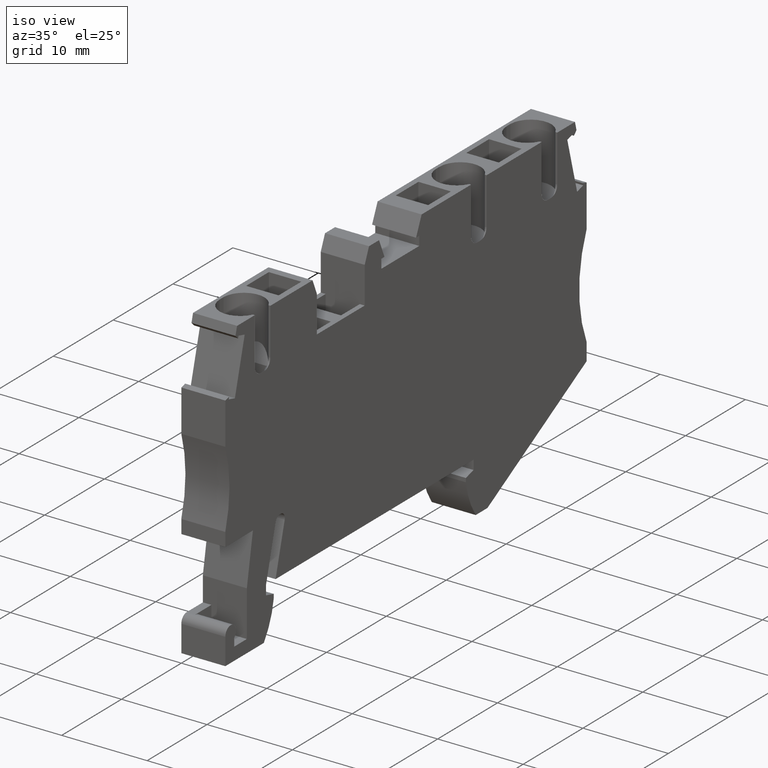
[diagram: clean part render]
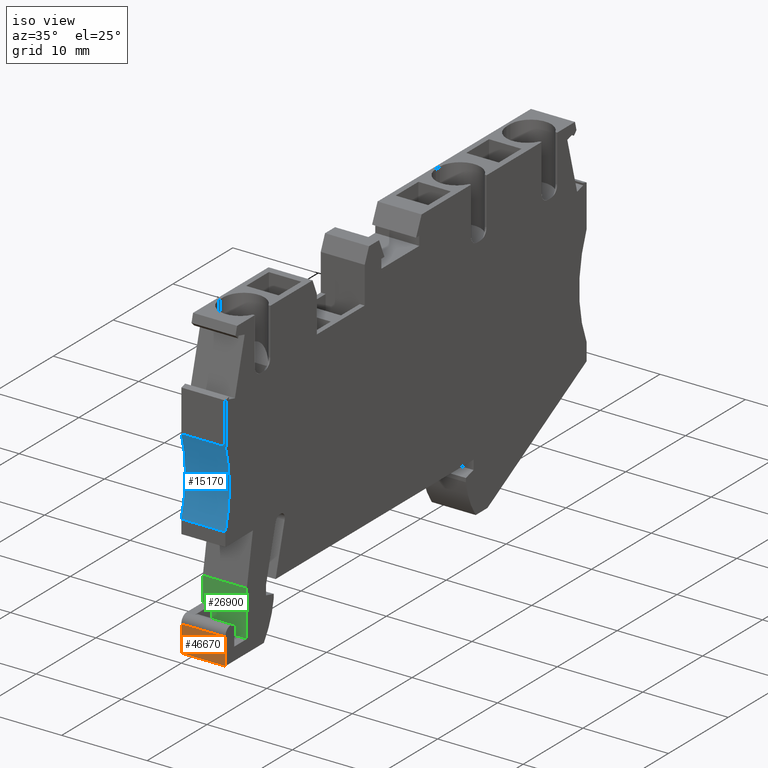
[diagram: same view with three faces highlighted in distinct colors, each labeled with its STEP entity id]
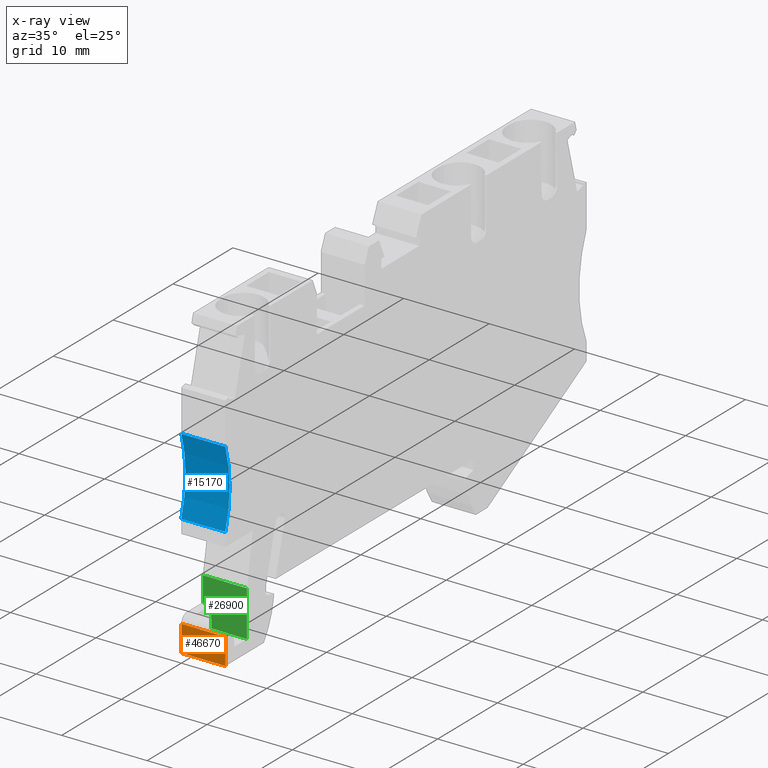
[diagram: x-ray of the same camera — body ghosted, the three highlighted faces saturated]
A machine part, iso view with three faces highlighted in distinct colors.
The next image is the same camera in x-ray (body ghosted, the three faces saturated) — at least one of them is partly hidden behind the body in this view.
Their STEP definitions:

[orange] entity #46670 — the highlighted planar face has unit normal (-0, -1, 0).
#18980=CARTESIAN_POINT('',(-22.3678327783247,-44.4000000000017,53.67));
#18990=VERTEX_POINT('',#18980);
#19020=CARTESIAN_POINT('',(-22.3678327783247,-39.6931569607141,53.67));
#19030=DIRECTION('',(0.,1.,0.));
#19040=VECTOR('',#19030,1.);
#19050=LINE('',#19020,#19040);
#19060=CARTESIAN_POINT('',(-22.3678327783247,-41.3000000000025,53.67));
#19070=VERTEX_POINT('',#19060);
#19080=EDGE_CURVE('',#18990,#19070,#19050,.T.);
#27580=CARTESIAN_POINT('',(-22.3678327783247,-41.3000000000018,48.52));
#27590=VERTEX_POINT('',#27580);
#27620=CARTESIAN_POINT('',(-22.3678327783247,-39.6931569607141,48.52));
#27630=DIRECTION('',(0.,1.,0.));
#27640=VECTOR('',#27630,1.);
#27650=LINE('',#27620,#27640);
#27660=CARTESIAN_POINT('',(-22.3678327783247,-44.4000000000017,48.52));
#27670=VERTEX_POINT('',#27660);
#27680=EDGE_CURVE('',#27670,#27590,#27650,.T.);
#45080=CARTESIAN_POINT('',(-22.3678327783247,-44.4000000000017,53.67));
#45090=DIRECTION('',(0.,0.,-1.));
#45100=VECTOR('',#45090,1.);
#45110=LINE('',#45080,#45100);
#45120=EDGE_CURVE('',#18990,#27670,#45110,.T.);
#46510=CARTESIAN_POINT('',(-22.3678327783247,-43.4000000000018,48.52));
#46520=DIRECTION('',(-1.,0.,0.));
#46530=DIRECTION('',(0.,-1.,0.));
#46540=AXIS2_PLACEMENT_3D('',#46510,#46520,#46530);
#46550=PLANE('',#46540);
#46560=ORIENTED_EDGE('',*,*,#19080,.T.);
#46570=ORIENTED_EDGE('',*,*,#45120,.F.);
#46580=ORIENTED_EDGE('',*,*,#27680,.F.);
#46590=CARTESIAN_POINT('',(-22.3678327783247,-41.3000000000025,53.67));
#46600=DIRECTION('',(5.04870979341448E-29,-6.60126663068576E-13,1.));
#46610=VECTOR('',#46600,1.);
#46620=LINE('',#46590,#46610);
#46630=EDGE_CURVE('',#27590,#19070,#46620,.T.);
#46640=ORIENTED_EDGE('',*,*,#46630,.F.);
#46650=EDGE_LOOP('',(#46640,#46580,#46570,#46560));
#46660=FACE_OUTER_BOUND('',#46650,.T.);
#46670=ADVANCED_FACE('',(#46660),#46550,.T.);

[blue] entity #15170 — the highlighted cylindrical surface (partial cylindrical patch) has radius 15 mm, axis along (1, -0, 0).
#12230=CARTESIAN_POINT('',(-22.3678327783245,-30.2000000000027,48.52));
#12240=VERTEX_POINT('',#12230);
#12270=CARTESIAN_POINT('',(-22.3678327783245,-30.2000000000027,53.67));
#12280=DIRECTION('',(0.,0.,1.));
#12290=VECTOR('',#12280,1.);
#12300=LINE('',#12270,#12290);
#12310=CARTESIAN_POINT('',(-22.3678327783245,-30.2000000000027,53.67));
#12320=VERTEX_POINT('',#12310);
#12330=EDGE_CURVE('',#12240,#12320,#12300,.T.);
#13000=CARTESIAN_POINT('',(-22.3678327783245,-21.2000000000028,53.67));
#13010=VERTEX_POINT('',#13000);
#13040=CARTESIAN_POINT('',(-22.3678327783245,-21.2000000000028,53.67));
#13050=DIRECTION('',(0.,0.,1.));
#13060=VECTOR('',#13050,1.);
#13070=LINE('',#13040,#13060);
#13080=CARTESIAN_POINT('',(-22.3678327783245,-21.2000000000028,48.52));
#13090=VERTEX_POINT('',#13080);
#13100=EDGE_CURVE('',#13090,#13010,#13070,.T.);
#14940=CARTESIAN_POINT('',(-36.6769207995787,-25.7000000000028,53.67));
#14950=DIRECTION('',(0.,0.,1.));
#14960=DIRECTION('',(1.,0.,0.));
#14970=AXIS2_PLACEMENT_3D('',#14940,#14950,#14960);
#14980=CYLINDRICAL_SURFACE('',#14970,15.);
#14990=ORIENTED_EDGE('',*,*,#13100,.F.);
#15000=CARTESIAN_POINT('',(-36.6769207995787,-25.7000000000028,53.67));
#15010=DIRECTION('',(0.,0.,1.));
#15020=DIRECTION('',(1.,0.,0.));
#15030=AXIS2_PLACEMENT_3D('',#15000,#15010,#15020);
#15040=CIRCLE('',#15030,15.);
#15050=EDGE_CURVE('',#12320,#13010,#15040,.T.);
#15060=ORIENTED_EDGE('',*,*,#15050,.T.);
#15070=ORIENTED_EDGE('',*,*,#12330,.T.);
#15080=CARTESIAN_POINT('',(-36.6769207995787,-25.7000000000028,48.52));
#15090=DIRECTION('',(0.,0.,1.));
#15100=DIRECTION('',(1.,0.,0.));
#15110=AXIS2_PLACEMENT_3D('',#15080,#15090,#15100);
#15120=CIRCLE('',#15110,15.);
#15130=EDGE_CURVE('',#12240,#13090,#15120,.T.);
#15140=ORIENTED_EDGE('',*,*,#15130,.F.);
#15150=EDGE_LOOP('',(#15140,#15070,#15060,#14990));
#15160=FACE_OUTER_BOUND('',#15150,.T.);
#15170=ADVANCED_FACE('',(#15160),#14980,.F.);

[green] entity #26900 — the highlighted planar face has unit normal (-0, -1, 0).
#19310=CARTESIAN_POINT('',(-18.7678327783266,-42.9000000000017,53.67));
#19320=VERTEX_POINT('',#19310);
#19350=CARTESIAN_POINT('',(-18.7678327783247,-40.1351813799645,53.67));
#19360=DIRECTION('',(0.,1.,0.));
#19370=VECTOR('',#19360,1.);
#19380=LINE('',#19350,#19370);
#19390=CARTESIAN_POINT('',(-18.7678327783247,-37.5384100015805,53.67));
#19400=VERTEX_POINT('',#19390);
#19410=EDGE_CURVE('',#19320,#19400,#19380,.T.);
#25110=CARTESIAN_POINT('',(-18.7678327783247,-40.4000000000018,53.67));
#25120=DIRECTION('',(0.,0.,-1.));
#25130=VECTOR('',#25120,1.);
#25140=LINE('',#25110,#25130);
#25150=CARTESIAN_POINT('',(-18.7678327783247,-40.4000000000018,
49.519999999983));
#25160=VERTEX_POINT('',#25150);
#25170=CARTESIAN_POINT('',(-18.7678327783247,-40.4000000000018,48.52));
#25180=VERTEX_POINT('',#25170);
#25190=EDGE_CURVE('',#25160,#25180,#25140,.T.);
#26530=CARTESIAN_POINT('',(-18.7678327783247,-39.4000000000018,48.52));
#26540=DIRECTION('',(-1.,0.,0.));
#26550=DIRECTION('',(0.,-1.,0.));
#26560=AXIS2_PLACEMENT_3D('',#26530,#26540,#26550);
#26570=PLANE('',#26560);
#26580=CARTESIAN_POINT('',(-18.7678327783247,-40.1351813799645,48.52));
#26590=DIRECTION('',(0.,1.,0.));
#26600=VECTOR('',#26590,1.);
#26610=LINE('',#26580,#26600);
#26620=CARTESIAN_POINT('',(-18.7678327783247,-37.5384100015805,48.52));
#26630=VERTEX_POINT('',#26620);
#26640=EDGE_CURVE('',#25180,#26630,#26610,.T.);
#26650=ORIENTED_EDGE('',*,*,#26640,.F.);
#26660=CARTESIAN_POINT('',(-18.7678327783247,-37.5384100015805,53.67));
#26670=DIRECTION('',(0.,0.,1.));
#26680=VECTOR('',#26670,1.);
#26690=LINE('',#26660,#26680);
#26700=EDGE_CURVE('',#26630,#19400,#26690,.T.);
#26710=ORIENTED_EDGE('',*,*,#26700,.F.);
#26720=ORIENTED_EDGE('',*,*,#19410,.T.);
#26730=CARTESIAN_POINT('',(-18.7678327783231,-42.9000000000017,
49.519999999983));
#26740=DIRECTION('',(-8.43054428632944E-13,-1.46035561482392E-15,1.));
#26750=VECTOR('',#26740,1.);
#26760=LINE('',#26730,#26750);
#26770=CARTESIAN_POINT('',(-18.7678327783231,-42.9000000000017,
49.519999999983));
#26780=VERTEX_POINT('',#26770);
#26790=EDGE_CURVE('',#26780,#19320,#26760,.T.);
#26800=ORIENTED_EDGE('',*,*,#26790,.T.);
#26810=CARTESIAN_POINT('',(-18.7678327783231,-40.1351813799645,
49.519999999983));
#26820=DIRECTION('',(4.16333634234434E-17,-1.,-1.46035561482402E-15));
#26830=VECTOR('',#26820,1.);
#26840=LINE('',#26810,#26830);
#26850=EDGE_CURVE('',#25160,#26780,#26840,.T.);
#26860=ORIENTED_EDGE('',*,*,#26850,.T.);
#26870=ORIENTED_EDGE('',*,*,#25190,.F.);
#26880=EDGE_LOOP('',(#26870,#26860,#26800,#26720,#26710,#26650));
#26890=FACE_OUTER_BOUND('',#26880,.T.);
#26900=ADVANCED_FACE('',(#26890),#26570,.T.);